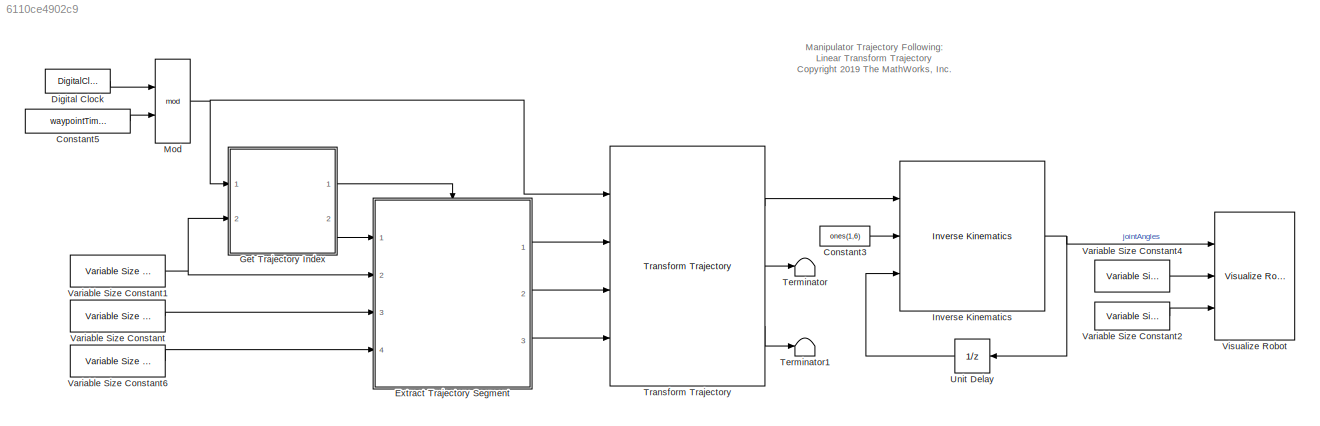
MODEL slx_6110ce4902c9
KIND model
CONFIG AbsTol = auto
CONFIG EnableMultiTasking = off
CONFIG FixedStep = auto
CONFIG MaxStep = auto
CONFIG MinStep = auto
CONFIG PreLoadFcn = createWaypointData;
CONFIG RelTol = 1e-3
CONFIG SampleTimeConstraint = Unconstrained
CONFIG Solver = FixedStepAuto
CONFIG SolverName = FixedStepAuto
CONFIG StartTime = 0.0
CONFIG StopTime = inf
BLOCK [Constant] Constant3
  Value = ones(1,6)
  VectorParams1D = off
BLOCK [Constant] Constant5
  Value = waypointTimes(end)
BLOCK [DigitalClock] Digital Clock
  SampleTime = ts
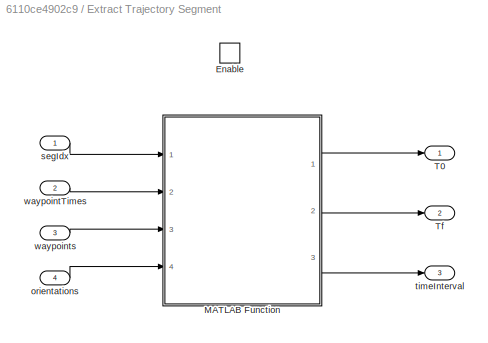
BLOCK [SubSystem] Extract Trajectory Segment
  Ports = [4, 3, 1]
  RequestExecContextInheritance = off
BLOCK [EnablePort] Extract Trajectory Segment/Enable
  Ports = []
  PropagateVarSize = During execution
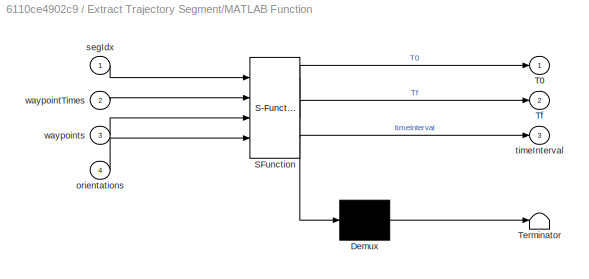
BLOCK [SubSystem] Extract Trajectory Segment/MATLAB Function
  ErrorFcn = Stateflow.Translate.translate
  PermitHierarchicalResolution = ExplicitOnly
  Ports = [4, 3]
  RequestExecContextInheritance = off
  SFBlockType = MATLAB Function
  TreatAsAtomicUnit = on
BLOCK [Demux] Extract Trajectory Segment/MATLAB Function/ Demux 
  Outputs = 1
  Ports = [1, 1]
BLOCK [S-Function] Extract Trajectory Segment/MATLAB Function/ SFunction 
  EnableBusSupport = on
  FunctionName = sf_sfun
  PortCounts = [4 4]
  Ports = [4, 4]
  SFcnIsStateOwnerBlock = off
  SFunctionDeploymentMode = off
  Tag = Stateflow S-Function 2
BLOCK [Terminator] Extract Trajectory Segment/MATLAB Function/ Terminator 
BLOCK [Outport] Extract Trajectory Segment/MATLAB Function/T0
  VectorParamsAs1DForOutWhenUnconnected = off
BLOCK [Outport] Extract Trajectory Segment/MATLAB Function/Tf
  Port = 2
  VectorParamsAs1DForOutWhenUnconnected = off
BLOCK [Inport] Extract Trajectory Segment/MATLAB Function/orientations
  Port = 4
BLOCK [Inport] Extract Trajectory Segment/MATLAB Function/segIdx
BLOCK [Outport] Extract Trajectory Segment/MATLAB Function/timeInterval
  Port = 3
  VectorParamsAs1DForOutWhenUnconnected = off
BLOCK [Inport] Extract Trajectory Segment/MATLAB Function/waypointTimes
  Port = 2
BLOCK [Inport] Extract Trajectory Segment/MATLAB Function/waypoints
  Port = 3
BLOCK [Outport] Extract Trajectory Segment/T0
  VectorParamsAs1DForOutWhenUnconnected = off
BLOCK [Outport] Extract Trajectory Segment/Tf
  Port = 2
  VectorParamsAs1DForOutWhenUnconnected = off
BLOCK [Inport] Extract Trajectory Segment/orientations
  Port = 4
BLOCK [Inport] Extract Trajectory Segment/segIdx
BLOCK [Outport] Extract Trajectory Segment/timeInterval
  Port = 3
  VectorParamsAs1DForOutWhenUnconnected = off
BLOCK [Inport] Extract Trajectory Segment/waypointTimes
  Port = 2
BLOCK [Inport] Extract Trajectory Segment/waypoints
  Port = 3
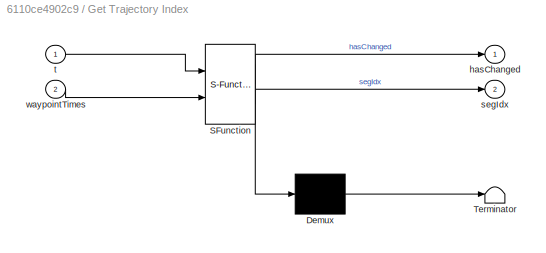
BLOCK [SubSystem] Get Trajectory Index
  ErrorFcn = Stateflow.Translate.translate
  PermitHierarchicalResolution = ExplicitOnly
  Ports = [2, 2]
  RequestExecContextInheritance = off
  SFBlockType = MATLAB Function
  TreatAsAtomicUnit = on
BLOCK [Demux] Get Trajectory Index/ Demux 
  Outputs = 1
  Ports = [1, 1]
BLOCK [S-Function] Get Trajectory Index/ SFunction 
  EnableBusSupport = on
  FunctionName = sf_sfun
  PortCounts = [2 3]
  Ports = [2, 3]
  SFcnIsStateOwnerBlock = off
  SFunctionDeploymentMode = off
  Tag = Stateflow S-Function 1
BLOCK [Terminator] Get Trajectory Index/ Terminator 
BLOCK [Outport] Get Trajectory Index/hasChanged
  VectorParamsAs1DForOutWhenUnconnected = off
BLOCK [Outport] Get Trajectory Index/segIdx
  Port = 2
  VectorParamsAs1DForOutWhenUnconnected = off
BLOCK [Inport] Get Trajectory Index/t
BLOCK [Inport] Get Trajectory Index/waypointTimes
  Port = 2
BLOCK [Reference] Inverse Kinematics  REF=robotmaniplib/Inverse Kinematics
  Ports = [3, 1]
  SourceBlock = robotmaniplib/Inverse Kinematics
  SourceProductBaseCode = RO
  SourceType = Inverse Kinematics
BLOCK [Math] Mod
  Operator = mod
  Ports = [2, 1]
  SignedPower = on
BLOCK [Terminator] Terminator
BLOCK [Terminator] Terminator1
BLOCK [Reference] Transform Trajectory  REF=robotcorelib/Transform Trajectory
  Ports = [4, 3]
  SourceBlock = robotcorelib/Transform Trajectory
  SourceProductBaseCode = NV,RO,RR
  SourceType = robotics.slcore.internal.block.TransformTrajSys
BLOCK [UnitDelay] Unit Delay
  HasFrameUpgradeWarning = on
  InitialCondition = ikInitGuess'
  SampleTime = -1
BLOCK [Reference] Variable Size Constant  REF=trajExampleUtils/Variable Size Constant
  Ports = [0, 1]
  SourceBlock = trajExampleUtils/Variable Size Constant
  SourceType = Variable Size Constant
BLOCK [Reference] Variable Size Constant1  REF=trajExampleUtils/Variable Size Constant
  Ports = [0, 1]
  SourceBlock = trajExampleUtils/Variable Size Constant
  SourceType = Variable Size Constant
BLOCK [Reference] Variable Size Constant2  REF=trajExampleUtils/Variable Size Constant
  Ports = [0, 1]
  SourceBlock = trajExampleUtils/Variable Size Constant
  SourceType = Variable Size Constant
BLOCK [Reference] Variable Size Constant4  REF=trajExampleUtils/Variable Size Constant
  Ports = [0, 1]
  SourceBlock = trajExampleUtils/Variable Size Constant
  SourceType = Variable Size Constant
BLOCK [Reference] Variable Size Constant6  REF=trajExampleUtils/Variable Size Constant
  Ports = [0, 1]
  SourceBlock = trajExampleUtils/Variable Size Constant
  SourceType = Variable Size Constant
BLOCK [Reference] Visualize Robot  REF=trajExampleUtils/Visualize Robot
  Ports = [3]
  SourceBlock = trajExampleUtils/Visualize Robot
  SourceType = Visualize Robot
ANNOTATION (root): Manipulator Trajectory Following: Linear Transform Trajectory <copyright redacted>
LINE Constant3:1 -> Inverse Kinematics:2
LINE Constant5:1 -> Mod:2
LINE Digital Clock:1 -> Mod:1
LINE Extract Trajectory Segment/MATLAB Function:1 -> Extract Trajectory Segment/T0:1
LINE Extract Trajectory Segment/MATLAB Function:2 -> Extract Trajectory Segment/Tf:1
LINE Extract Trajectory Segment/MATLAB Function:3 -> Extract Trajectory Segment/timeInterval:1
LINE Extract Trajectory Segment/orientations:1 -> Extract Trajectory Segment/MATLAB Function:4
LINE Extract Trajectory Segment/segIdx:1 -> Extract Trajectory Segment/MATLAB Function:1
LINE Extract Trajectory Segment/waypointTimes:1 -> Extract Trajectory Segment/MATLAB Function:2
LINE Extract Trajectory Segment/waypoints:1 -> Extract Trajectory Segment/MATLAB Function:3
LINE Extract Trajectory Segment:1 -> Transform Trajectory:2
LINE Extract Trajectory Segment:2 -> Transform Trajectory:3
LINE Extract Trajectory Segment:3 -> Transform Trajectory:4
LINE Get Trajectory Index:1 -> Extract Trajectory Segment:enable
LINE Get Trajectory Index:2 -> Extract Trajectory Segment:1
NET Inverse Kinematics:1 -> Unit Delay:1, Visualize Robot:1
NET Mod:1 -> Get Trajectory Index:1, Transform Trajectory:1
LINE Transform Trajectory:1 -> Inverse Kinematics:1
LINE Transform Trajectory:2 -> Terminator:1
LINE Transform Trajectory:3 -> Terminator1:1
LINE Unit Delay:1 -> Inverse Kinematics:3
NET Variable Size Constant1:1 -> Extract Trajectory Segment:2, Get Trajectory Index:2
LINE Variable Size Constant2:1 -> Visualize Robot:3
LINE Variable Size Constant4:1 -> Visualize Robot:2
LINE Variable Size Constant6:1 -> Extract Trajectory Segment:4
LINE Variable Size Constant:1 -> Extract Trajectory Segment:3
note: NET lines group one-source signal fan-out (src -> all destinations, sorted); 1:1 wires keep LINE
CHART Get Trajectory Index states=1 transitions=1
  STATE_LABEL 'eML_blk_kernel()'
  STATE_LABEL 'SCRIPT:\nfunction [hasChanged,segIdx] = getTrajIdx(t,waypointTimes)\n\n% Initialize previous index\npersistent prevIdx\nif isempty(prevIdx)\n    prevIdx = 0;\nend\n\n% Find the trajectory segment index\nsegIndices = find(t>=waypointTimes);\n\n% Limit the index value to the number of times minus one\n% (This addresses the final time case)\nsegIdx = min(segIndices(end),numel(waypointTimes)-1);\n\n% Determine whethe...<+157ch>'
CHART Extract Trajectory Segment/MATLAB Function states=1 transitions=1
  STATE_LABEL 'eML_blk_kernel()'
  STATE_LABEL "SCRIPT:\nfunction [T0, Tf, timeInterval] = createTransformTrajSegment(segIdx,waypointTimes,waypoints,orientations)\n\n% Extract the time interval, initial, and final transforms for the segment\ntimeInterval = waypointTimes(segIdx:segIdx+1);\nT0 = trvec2tform(waypoints(:,segIdx)') * eul2tform(orientations(:,segIdx)');\nTf = trvec2tform(waypoints(:,segIdx+1)') * eul2tform(orientations(:,segIdx+1)');\n\nend\n...<+1ch>"
CHART  states=0 transitions=0
CHART  states=0 transitions=0
